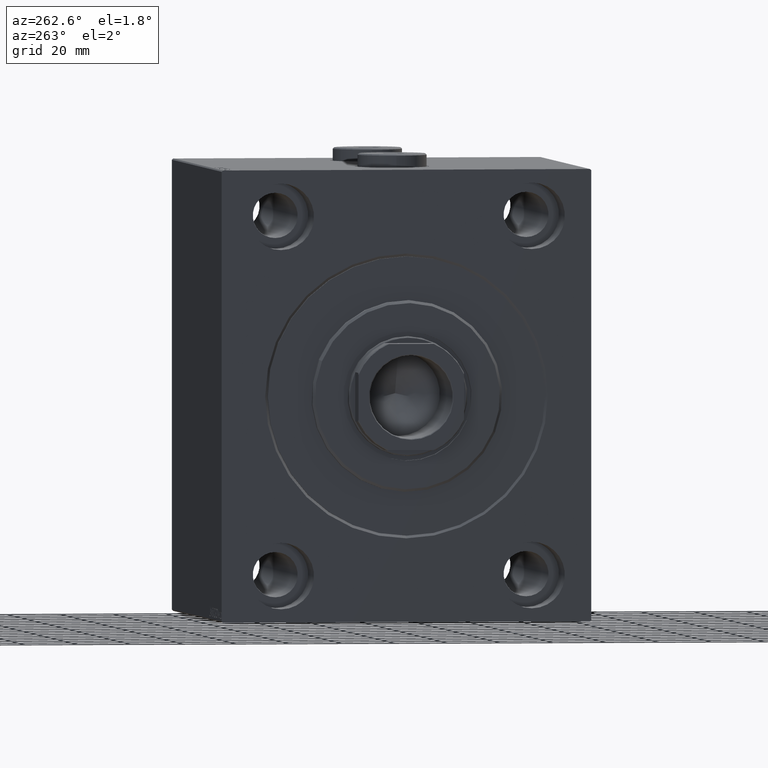
[diagram: clean part render]
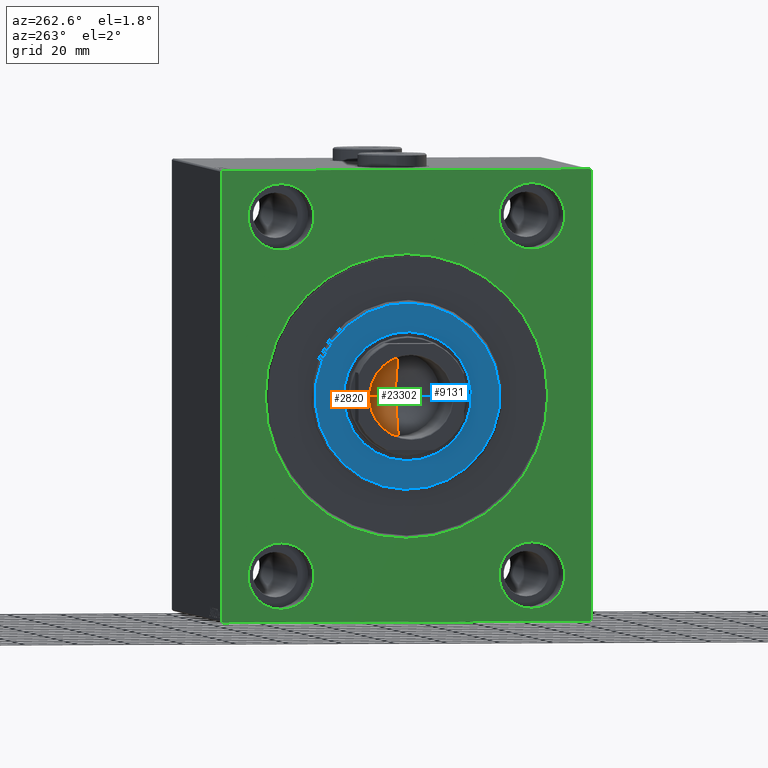
[diagram: same view with three faces highlighted in distinct colors, each labeled with its STEP entity id]
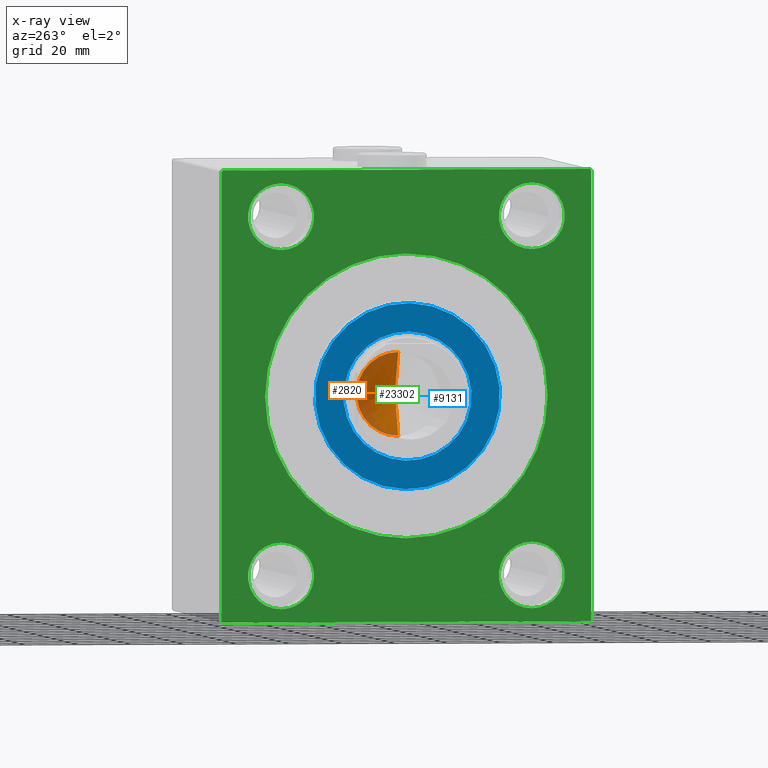
[diagram: x-ray of the same camera — body ghosted, the three highlighted faces saturated]
A machine part, auxiliary view with three faces highlighted in distinct colors.
The next image is the same camera in x-ray (body ghosted, the three faces saturated) — at least one of them is partly hidden behind the body in this view.
Their STEP definitions:

[orange] entity #2820 — the highlighted conical surface has half-angle 59 deg.
#2127 = DIRECTION ( 'NONE',  ( -0.000000000000000000, -0.000000000000000000, 1.000000000000000000 ) ) ;
#2820 = ADVANCED_FACE ( 'NONE', ( #21592 ), #24043, .F. ) ;
#4655 = VECTOR ( 'NONE', #29909, 1000.000000000000000 ) ;
#7033 = CARTESIAN_POINT ( 'NONE',  ( 15.74999999999999289, 0.000000000000000000, 26.99999999999998934 ) ) ;
#9933 = EDGE_CURVE ( 'NONE', #42795, #26758, #27782, .T. ) ;
#11295 = EDGE_LOOP ( 'NONE', ( #24054, #20606, #41231 ) ) ;
#15240 = CARTESIAN_POINT ( 'NONE',  ( -1.199718644317817648E-14, 0.000000000000000000, 17.53644525031590362 ) ) ;
#16497 = CARTESIAN_POINT ( 'NONE',  ( 0.000000000000000000, 0.000000000000000000, 26.99999999999998934 ) ) ;
#17476 = AXIS2_PLACEMENT_3D ( 'NONE', #32095, #39407, #39183 ) ;
#20606 = ORIENTED_EDGE ( 'NONE', *, *, #9933, .T. ) ;
#21121 = CARTESIAN_POINT ( 'NONE',  ( -15.74999999999999289, 1.928818708657080556E-15, 26.99999999999998934 ) ) ;
#21592 = FACE_OUTER_BOUND ( 'NONE', #11295, .T. ) ;
#22245 = VERTEX_POINT ( 'NONE', #21121 ) ;
#23254 = CIRCLE ( 'NONE', #29088, 15.74999999999999289 ) ;
#23331 = DIRECTION ( 'NONE',  ( 1.000000000000000000, 0.000000000000000000, 0.000000000000000000 ) ) ;
#24043 = CONICAL_SURFACE ( 'NONE', #17476, 15.74999999999999289, 1.029744258676653645 ) ;
#24054 = ORIENTED_EDGE ( 'NONE', *, *, #40823, .F. ) ;
#24223 = CARTESIAN_POINT ( 'NONE',  ( 15.74999999999999289, 0.000000000000000000, 26.99999999999998934 ) ) ;
#26481 = LINE ( 'NONE', #43406, #4655 ) ;
#26758 = VERTEX_POINT ( 'NONE', #24223 ) ;
#27782 = LINE ( 'NONE', #7033, #34568 ) ;
#27937 = EDGE_CURVE ( 'NONE', #26758, #22245, #23254, .T. ) ;
#29088 = AXIS2_PLACEMENT_3D ( 'NONE', #16497, #2127, #23331 ) ;
#29909 = DIRECTION ( 'NONE',  ( -0.8571673007021118895, 1.049727191138618079E-16, 0.5150380749100549327 ) ) ;
#31207 = DIRECTION ( 'NONE',  ( 0.8571673007021118895, 0.000000000000000000, 0.5150380749100549327 ) ) ;
#32095 = CARTESIAN_POINT ( 'NONE',  ( 0.000000000000000000, 0.000000000000000000, 26.99999999999998934 ) ) ;
#34568 = VECTOR ( 'NONE', #31207, 1000.000000000000000 ) ;
#39183 = DIRECTION ( 'NONE',  ( 1.000000000000000000, 0.000000000000000000, 0.000000000000000000 ) ) ;
#39407 = DIRECTION ( 'NONE',  ( -0.000000000000000000, -0.000000000000000000, 1.000000000000000000 ) ) ;
#40823 = EDGE_CURVE ( 'NONE', #42795, #22245, #26481, .T. ) ;
#41231 = ORIENTED_EDGE ( 'NONE', *, *, #27937, .T. ) ;
#42795 = VERTEX_POINT ( 'NONE', #15240 ) ;
#43406 = CARTESIAN_POINT ( 'NONE',  ( -15.74999999999999289, 1.928818708657080556E-15, 26.99999999999998934 ) ) ;

[blue] entity #9131 — the highlighted planar face has unit normal (-1, 0, 0).
#160 = EDGE_LOOP ( 'NONE', ( #8789, #40307 ) ) ;
#998 = CIRCLE ( 'NONE', #40344, 35.00000000000001421 ) ;
#2671 = EDGE_CURVE ( 'NONE', #43795, #31855, #4393, .T. ) ;
#4393 = CIRCLE ( 'NONE', #18948, 24.25000000000000000 ) ;
#4964 = CIRCLE ( 'NONE', #20257, 24.25000000000000000 ) ;
#6074 = CARTESIAN_POINT ( 'NONE',  ( 3.000000000000000000, 0.000000000000000000, 35.00000000000001421 ) ) ;
#6100 = DIRECTION ( 'NONE',  ( 0.000000000000000000, 0.000000000000000000, -1.000000000000000000 ) ) ;
#6467 = DIRECTION ( 'NONE',  ( -1.000000000000000000, 0.000000000000000000, -0.000000000000000000 ) ) ;
#7133 = CARTESIAN_POINT ( 'NONE',  ( 3.000000000000000000, 0.000000000000000000, 24.25000000000000000 ) ) ;
#8276 = CIRCLE ( 'NONE', #16310, 35.00000000000001421 ) ;
#8789 = ORIENTED_EDGE ( 'NONE', *, *, #40357, .T. ) ;
#9131 = ADVANCED_FACE ( 'NONE', ( #44924, #30773 ), #41285, .T. ) ;
#16302 = DIRECTION ( 'NONE',  ( 0.000000000000000000, 0.000000000000000000, -1.000000000000000000 ) ) ;
#16310 = AXIS2_PLACEMENT_3D ( 'NONE', #41213, #19984, #44400 ) ;
#17803 = AXIS2_PLACEMENT_3D ( 'NONE', #41512, #30099, #20281 ) ;
#18948 = AXIS2_PLACEMENT_3D ( 'NONE', #31184, #20915, #38502 ) ;
#19502 = CARTESIAN_POINT ( 'NONE',  ( 3.000000000000000000, 2.969768487932331287E-15, -24.25000000000000000 ) ) ;
#19791 = DIRECTION ( 'NONE',  ( 1.000000000000000000, -0.000000000000000000, 0.000000000000000000 ) ) ;
#19984 = DIRECTION ( 'NONE',  ( 1.000000000000000000, -0.000000000000000000, 0.000000000000000000 ) ) ;
#20257 = AXIS2_PLACEMENT_3D ( 'NONE', #27435, #6467, #16302 ) ;
#20281 = DIRECTION ( 'NONE',  ( 0.000000000000000000, 0.000000000000000000, -1.000000000000000000 ) ) ;
#20458 = CARTESIAN_POINT ( 'NONE',  ( 3.000000000000000000, 0.000000000000000000, 0.000000000000000000 ) ) ;
#20671 = ORIENTED_EDGE ( 'NONE', *, *, #23800, .T. ) ;
#20915 = DIRECTION ( 'NONE',  ( -1.000000000000000000, 0.000000000000000000, -0.000000000000000000 ) ) ;
#23800 = EDGE_CURVE ( 'NONE', #31855, #43795, #4964, .T. ) ;
#26542 = VERTEX_POINT ( 'NONE', #34111 ) ;
#27435 = CARTESIAN_POINT ( 'NONE',  ( 3.000000000000000000, 0.000000000000000000, 0.000000000000000000 ) ) ;
#29149 = ORIENTED_EDGE ( 'NONE', *, *, #2671, .T. ) ;
#30099 = DIRECTION ( 'NONE',  ( 1.000000000000000000, -0.000000000000000000, 0.000000000000000000 ) ) ;
#30773 = FACE_BOUND ( 'NONE', #32759, .T. ) ;
#31184 = CARTESIAN_POINT ( 'NONE',  ( 3.000000000000000000, 0.000000000000000000, 0.000000000000000000 ) ) ;
#31855 = VERTEX_POINT ( 'NONE', #19502 ) ;
#32759 = EDGE_LOOP ( 'NONE', ( #29149, #20671 ) ) ;
#34111 = CARTESIAN_POINT ( 'NONE',  ( 3.000000000000000000, 4.347496136973104859E-15, -35.00000000000001421 ) ) ;
#38502 = DIRECTION ( 'NONE',  ( 0.000000000000000000, 0.000000000000000000, -1.000000000000000000 ) ) ;
#40307 = ORIENTED_EDGE ( 'NONE', *, *, #41704, .T. ) ;
#40344 = AXIS2_PLACEMENT_3D ( 'NONE', #20458, #19791, #6100 ) ;
#40357 = EDGE_CURVE ( 'NONE', #41731, #26542, #998, .T. ) ;
#41213 = CARTESIAN_POINT ( 'NONE',  ( 3.000000000000000000, 0.000000000000000000, 0.000000000000000000 ) ) ;
#41285 = PLANE ( 'NONE',  #17803 ) ;
#41512 = CARTESIAN_POINT ( 'NONE',  ( 3.000000000000000000, 0.000000000000000000, 0.000000000000000000 ) ) ;
#41704 = EDGE_CURVE ( 'NONE', #26542, #41731, #8276, .T. ) ;
#41731 = VERTEX_POINT ( 'NONE', #6074 ) ;
#43795 = VERTEX_POINT ( 'NONE', #7133 ) ;
#44400 = DIRECTION ( 'NONE',  ( 0.000000000000000000, 0.000000000000000000, -1.000000000000000000 ) ) ;
#44924 = FACE_OUTER_BOUND ( 'NONE', #160, .T. ) ;

[green] entity #23302 — the highlighted planar face has unit normal (1, 0, 0).
#179 = EDGE_CURVE ( 'NONE', #15890, #20948, #5470, .T. ) ;
#390 = CARTESIAN_POINT ( 'NONE',  ( 0.000000000000000000, -69.49999999999998579, 84.99999999999998579 ) ) ;
#637 = CARTESIAN_POINT ( 'NONE',  ( 0.000000000000000000, 0.000000000000000000, 0.000000000000000000 ) ) ;
#710 = CIRCLE ( 'NONE', #33473, 53.50000000000000000 ) ;
#992 = EDGE_CURVE ( 'NONE', #16031, #43505, #710, .T. ) ;
#1078 = EDGE_CURVE ( 'NONE', #13106, #38395, #21833, .T. ) ;
#1153 = CARTESIAN_POINT ( 'NONE',  ( 0.000000000000000000, 6.551860375438339893E-15, -53.50000000000000000 ) ) ;
#1564 = DIRECTION ( 'NONE',  ( -1.000000000000000000, 0.000000000000000000, 0.000000000000000000 ) ) ;
#1672 = DIRECTION ( 'NONE',  ( -1.000000000000000000, 0.000000000000000000, 0.000000000000000000 ) ) ;
#2085 = FACE_BOUND ( 'NONE', #39377, .T. ) ;
#2131 = AXIS2_PLACEMENT_3D ( 'NONE', #26473, #16237, #19415 ) ;
#2341 = ORIENTED_EDGE ( 'NONE', *, *, #19919, .T. ) ;
#2453 = DIRECTION ( 'NONE',  ( 0.000000000000000000, 0.000000000000000000, 1.000000000000000000 ) ) ;
#2538 = LINE ( 'NONE', #16688, #6619 ) ;
#2745 = CIRCLE ( 'NONE', #31785, 12.50000000000001066 ) ;
#3670 = VERTEX_POINT ( 'NONE', #390 ) ;
#4202 = CARTESIAN_POINT ( 'NONE',  ( 0.000000000000000000, 0.000000000000000000, 0.000000000000000000 ) ) ;
#4733 = CARTESIAN_POINT ( 'NONE',  ( 0.000000000000000000, -47.49999999999999289, -67.50000000000000000 ) ) ;
#4911 = DIRECTION ( 'NONE',  ( 0.000000000000000000, 0.000000000000000000, 1.000000000000000000 ) ) ;
#5092 = CARTESIAN_POINT ( 'NONE',  ( 0.000000000000000000, 70.00000000000002842, -85.00000000000001421 ) ) ;
#5150 = CIRCLE ( 'NONE', #23350, 12.50000000000001066 ) ;
#5312 = LINE ( 'NONE', #12181, #5956 ) ;
#5438 = VERTEX_POINT ( 'NONE', #7665 ) ;
#5470 = LINE ( 'NONE', #26664, #22527 ) ;
#5632 = CARTESIAN_POINT ( 'NONE',  ( 0.000000000000000000, 70.00000000000002842, -84.50000000000004263 ) ) ;
#5869 = EDGE_LOOP ( 'NONE', ( #43247, #30899 ) ) ;
#5956 = VECTOR ( 'NONE', #36588, 1000.000000000000000 ) ;
#5960 = FACE_BOUND ( 'NONE', #5869, .T. ) ;
#6352 = EDGE_CURVE ( 'NONE', #43505, #16031, #39483, .T. ) ;
#6405 = FACE_BOUND ( 'NONE', #34715, .T. ) ;
#6619 = VECTOR ( 'NONE', #12834, 999.9999999999998863 ) ;
#6736 = EDGE_CURVE ( 'NONE', #7214, #3670, #5312, .T. ) ;
#6818 = ORIENTED_EDGE ( 'NONE', *, *, #15102, .F. ) ;
#7017 = LINE ( 'NONE', #30515, #12405 ) ;
#7214 = VERTEX_POINT ( 'NONE', #12048 ) ;
#7451 = EDGE_CURVE ( 'NONE', #8290, #5438, #21352, .T. ) ;
#7665 = CARTESIAN_POINT ( 'NONE',  ( 0.000000000000000000, 47.50000000000000711, 55.00000000000000000 ) ) ;
#8290 = VERTEX_POINT ( 'NONE', #23024 ) ;
#8532 = LINE ( 'NONE', #5092, #38741 ) ;
#8740 = AXIS2_PLACEMENT_3D ( 'NONE', #18570, #1672, #14936 ) ;
#9023 = CIRCLE ( 'NONE', #28662, 12.49999999999999645 ) ;
#9553 = DIRECTION ( 'NONE',  ( -0.000000000000000000, 0.7071067811865671127, 0.7071067811865279218 ) ) ;
#10317 = ORIENTED_EDGE ( 'NONE', *, *, #33894, .F. ) ;
#10330 = DIRECTION ( 'NONE',  ( 0.000000000000000000, 1.000000000000000000, 9.912705577010325549E-17 ) ) ;
#10339 = CARTESIAN_POINT ( 'NONE',  ( 0.000000000000000000, 69.50000000000001421, -85.00000000000001421 ) ) ;
#10880 = ORIENTED_EDGE ( 'NONE', *, *, #41613, .F. ) ;
#10913 = CARTESIAN_POINT ( 'NONE',  ( 0.000000000000000000, 47.50000000000000711, -80.00000000000000000 ) ) ;
#12048 = CARTESIAN_POINT ( 'NONE',  ( 0.000000000000000000, 69.50000000000007105, 85.00000000000000000 ) ) ;
#12181 = CARTESIAN_POINT ( 'NONE',  ( 0.000000000000000000, 70.00000000000001421, 85.00000000000000000 ) ) ;
#12225 = CARTESIAN_POINT ( 'NONE',  ( 0.000000000000000000, 47.50000000000000711, 67.50000000000000000 ) ) ;
#12405 = VECTOR ( 'NONE', #9553, 1000.000000000000000 ) ;
#12821 = DIRECTION ( 'NONE',  ( 1.000000000000000000, 0.000000000000000000, 0.000000000000000000 ) ) ;
#12834 = DIRECTION ( 'NONE',  ( -0.000000000000000000, 0.7071067811865574537, -0.7071067811865376918 ) ) ;
#12866 = AXIS2_PLACEMENT_3D ( 'NONE', #17609, #14425, #41576 ) ;
#13106 = VERTEX_POINT ( 'NONE', #32105 ) ;
#13231 = AXIS2_PLACEMENT_3D ( 'NONE', #637, #35332, #35098 ) ;
#13798 = DIRECTION ( 'NONE',  ( 0.000000000000000000, 0.000000000000000000, -1.000000000000000000 ) ) ;
#14172 = VERTEX_POINT ( 'NONE', #10913 ) ;
#14425 = DIRECTION ( 'NONE',  ( -1.000000000000000000, 0.000000000000000000, 0.000000000000000000 ) ) ;
#14450 = VECTOR ( 'NONE', #44622, 1000.000000000000114 ) ;
#14859 = VERTEX_POINT ( 'NONE', #18340 ) ;
#14936 = DIRECTION ( 'NONE',  ( 0.000000000000000000, 0.000000000000000000, 1.000000000000000000 ) ) ;
#15102 = EDGE_CURVE ( 'NONE', #15409, #42204, #42730, .T. ) ;
#15409 = VERTEX_POINT ( 'NONE', #35350 ) ;
#15890 = VERTEX_POINT ( 'NONE', #42026 ) ;
#16031 = VERTEX_POINT ( 'NONE', #23727 ) ;
#16237 = DIRECTION ( 'NONE',  ( -1.000000000000000000, 0.000000000000000000, 0.000000000000000000 ) ) ;
#16243 = FACE_BOUND ( 'NONE', #32385, .T. ) ;
#16678 = FACE_BOUND ( 'NONE', #24513, .T. ) ;
#16688 = CARTESIAN_POINT ( 'NONE',  ( 0.000000000000000000, 69.50000000000007105, 85.00000000000000000 ) ) ;
#17609 = CARTESIAN_POINT ( 'NONE',  ( 0.000000000000000000, -47.49999999999997868, 67.50000000000000000 ) ) ;
#17897 = ORIENTED_EDGE ( 'NONE', *, *, #31385, .T. ) ;
#17950 = CARTESIAN_POINT ( 'NONE',  ( 0.000000000000000000, 47.50000000000000711, -67.50000000000000000 ) ) ;
#18340 = CARTESIAN_POINT ( 'NONE',  ( 0.000000000000000000, 70.00000000000001421, 84.50000000000007105 ) ) ;
#18570 = CARTESIAN_POINT ( 'NONE',  ( 0.000000000000000000, -47.49999999999999289, -67.50000000000000000 ) ) ;
#18741 = EDGE_CURVE ( 'NONE', #42204, #15409, #2745, .T. ) ;
#19382 = CARTESIAN_POINT ( 'NONE',  ( 0.000000000000000000, -69.99999999999998579, -84.50000000000004263 ) ) ;
#19415 = DIRECTION ( 'NONE',  ( 0.000000000000000000, 0.000000000000000000, 1.000000000000000000 ) ) ;
#19737 = CARTESIAN_POINT ( 'NONE',  ( 0.000000000000000000, -47.49999999999997868, 67.50000000000000000 ) ) ;
#19867 = CARTESIAN_POINT ( 'NONE',  ( 0.000000000000000000, 0.000000000000000000, 0.000000000000000000 ) ) ;
#19919 = EDGE_CURVE ( 'NONE', #21895, #43942, #31943, .T. ) ;
#20319 = CIRCLE ( 'NONE', #2131, 12.49999999999999645 ) ;
#20357 = CARTESIAN_POINT ( 'NONE',  ( 0.000000000000000000, -69.99999999999998579, -85.00000000000002842 ) ) ;
#20948 = VERTEX_POINT ( 'NONE', #19382 ) ;
#21352 = CIRCLE ( 'NONE', #27898, 12.50000000000001066 ) ;
#21833 = CIRCLE ( 'NONE', #8740, 12.49999999999999645 ) ;
#21895 = VERTEX_POINT ( 'NONE', #36078 ) ;
#22448 = AXIS2_PLACEMENT_3D ( 'NONE', #19867, #12821, #41321 ) ;
#22514 = DIRECTION ( 'NONE',  ( 0.000000000000000000, 0.000000000000000000, 1.000000000000000000 ) ) ;
#22527 = VECTOR ( 'NONE', #23249, 1000.000000000000000 ) ;
#22574 = CIRCLE ( 'NONE', #24743, 12.49999999999999645 ) ;
#23024 = CARTESIAN_POINT ( 'NONE',  ( 0.000000000000000000, 47.50000000000000711, 80.00000000000001421 ) ) ;
#23140 = DIRECTION ( 'NONE',  ( -1.000000000000000000, 0.000000000000000000, 0.000000000000000000 ) ) ;
#23199 = ORIENTED_EDGE ( 'NONE', *, *, #7451, .F. ) ;
#23249 = DIRECTION ( 'NONE',  ( 0.000000000000000000, 0.000000000000000000, -1.000000000000000000 ) ) ;
#23302 = ADVANCED_FACE ( 'NONE', ( #5960, #2085, #16243, #6405, #16678, #40865 ), #36784, .F. ) ;
#23350 = AXIS2_PLACEMENT_3D ( 'NONE', #33273, #1564, #2453 ) ;
#23509 = EDGE_CURVE ( 'NONE', #44348, #20948, #37566, .T. ) ;
#23727 = CARTESIAN_POINT ( 'NONE',  ( 0.000000000000000000, 0.000000000000000000, 53.50000000000000000 ) ) ;
#24513 = EDGE_LOOP ( 'NONE', ( #10880, #40041 ) ) ;
#24658 = ORIENTED_EDGE ( 'NONE', *, *, #28572, .F. ) ;
#24743 = AXIS2_PLACEMENT_3D ( 'NONE', #17950, #41915, #31632 ) ;
#25096 = CARTESIAN_POINT ( 'NONE',  ( 0.000000000000000000, 47.50000000000000711, -55.00000000000000711 ) ) ;
#25705 = DIRECTION ( 'NONE',  ( -1.000000000000000000, 0.000000000000000000, 0.000000000000000000 ) ) ;
#26255 = ORIENTED_EDGE ( 'NONE', *, *, #35627, .F. ) ;
#26473 = CARTESIAN_POINT ( 'NONE',  ( 0.000000000000000000, 47.50000000000000711, -67.50000000000000000 ) ) ;
#26664 = CARTESIAN_POINT ( 'NONE',  ( 0.000000000000000000, -69.99999999999998579, 84.99999999999998579 ) ) ;
#26718 = EDGE_CURVE ( 'NONE', #44348, #43942, #34061, .T. ) ;
#26980 = EDGE_CURVE ( 'NONE', #14172, #31627, #20319, .T. ) ;
#27898 = AXIS2_PLACEMENT_3D ( 'NONE', #12225, #23140, #4911 ) ;
#28294 = CARTESIAN_POINT ( 'NONE',  ( 0.000000000000000000, -47.49999999999999289, -55.00000000000000711 ) ) ;
#28517 = DIRECTION ( 'NONE',  ( 0.000000000000000000, -0.7071067811865769936, -0.7071067811865181518 ) ) ;
#28572 = EDGE_CURVE ( 'NONE', #31627, #14172, #22574, .T. ) ;
#28662 = AXIS2_PLACEMENT_3D ( 'NONE', #4733, #25705, #22514 ) ;
#28932 = DIRECTION ( 'NONE',  ( -1.000000000000000000, 0.000000000000000000, 0.000000000000000000 ) ) ;
#29290 = EDGE_CURVE ( 'NONE', #15890, #3670, #7017, .T. ) ;
#30414 = ORIENTED_EDGE ( 'NONE', *, *, #26718, .F. ) ;
#30510 = VECTOR ( 'NONE', #10330, 1000.000000000000000 ) ;
#30515 = CARTESIAN_POINT ( 'NONE',  ( 0.000000000000000000, -69.99999999999998579, 84.50000000000001421 ) ) ;
#30649 = CARTESIAN_POINT ( 'NONE',  ( 0.000000000000000000, -47.49999999999997868, 55.00000000000000000 ) ) ;
#30899 = ORIENTED_EDGE ( 'NONE', *, *, #6352, .T. ) ;
#31342 = ORIENTED_EDGE ( 'NONE', *, *, #18741, .F. ) ;
#31385 = EDGE_CURVE ( 'NONE', #7214, #14859, #2538, .T. ) ;
#31627 = VERTEX_POINT ( 'NONE', #25096 ) ;
#31632 = DIRECTION ( 'NONE',  ( 0.000000000000000000, 0.000000000000000000, 1.000000000000000000 ) ) ;
#31785 = AXIS2_PLACEMENT_3D ( 'NONE', #19737, #28932, #33883 ) ;
#31943 = LINE ( 'NONE', #5632, #34011 ) ;
#32105 = CARTESIAN_POINT ( 'NONE',  ( 0.000000000000000000, -47.49999999999999289, -80.00000000000000000 ) ) ;
#32385 = EDGE_LOOP ( 'NONE', ( #6818, #31342 ) ) ;
#33193 = EDGE_LOOP ( 'NONE', ( #34351, #42862, #36998, #17897, #10317, #2341, #30414, #44808 ) ) ;
#33273 = CARTESIAN_POINT ( 'NONE',  ( 0.000000000000000000, 47.50000000000000711, 67.50000000000000000 ) ) ;
#33334 = CARTESIAN_POINT ( 'NONE',  ( 0.000000000000000000, -69.50000000000001421, -85.00000000000002842 ) ) ;
#33473 = AXIS2_PLACEMENT_3D ( 'NONE', #4202, #34996, #13798 ) ;
#33883 = DIRECTION ( 'NONE',  ( 0.000000000000000000, 0.000000000000000000, 1.000000000000000000 ) ) ;
#33894 = EDGE_CURVE ( 'NONE', #21895, #14859, #8532, .T. ) ;
#34011 = VECTOR ( 'NONE', #28517, 1000.000000000000000 ) ;
#34061 = LINE ( 'NONE', #20357, #30510 ) ;
#34351 = ORIENTED_EDGE ( 'NONE', *, *, #179, .F. ) ;
#34715 = EDGE_LOOP ( 'NONE', ( #23199, #26255 ) ) ;
#34996 = DIRECTION ( 'NONE',  ( 1.000000000000000000, 0.000000000000000000, 0.000000000000000000 ) ) ;
#35098 = DIRECTION ( 'NONE',  ( 0.000000000000000000, 0.000000000000000000, -1.000000000000000000 ) ) ;
#35332 = DIRECTION ( 'NONE',  ( 1.000000000000000000, 0.000000000000000000, 0.000000000000000000 ) ) ;
#35350 = CARTESIAN_POINT ( 'NONE',  ( 0.000000000000000000, -47.49999999999997868, 80.00000000000001421 ) ) ;
#35627 = EDGE_CURVE ( 'NONE', #5438, #8290, #5150, .T. ) ;
#36078 = CARTESIAN_POINT ( 'NONE',  ( 0.000000000000000000, 70.00000000000002842, -84.50000000000004263 ) ) ;
#36588 = DIRECTION ( 'NONE',  ( 0.000000000000000000, -1.000000000000000000, -9.912705577010325549E-17 ) ) ;
#36784 = PLANE ( 'NONE',  #22448 ) ;
#36857 = ORIENTED_EDGE ( 'NONE', *, *, #26980, .F. ) ;
#36998 = ORIENTED_EDGE ( 'NONE', *, *, #6736, .F. ) ;
#37566 = LINE ( 'NONE', #37786, #14450 ) ;
#37786 = CARTESIAN_POINT ( 'NONE',  ( 0.000000000000000000, -69.50000000000001421, -85.00000000000002842 ) ) ;
#38395 = VERTEX_POINT ( 'NONE', #28294 ) ;
#38741 = VECTOR ( 'NONE', #43438, 1000.000000000000000 ) ;
#39377 = EDGE_LOOP ( 'NONE', ( #24658, #36857 ) ) ;
#39483 = CIRCLE ( 'NONE', #13231, 53.50000000000000000 ) ;
#40041 = ORIENTED_EDGE ( 'NONE', *, *, #1078, .F. ) ;
#40865 = FACE_OUTER_BOUND ( 'NONE', #33193, .T. ) ;
#41321 = DIRECTION ( 'NONE',  ( 0.000000000000000000, 0.000000000000000000, -1.000000000000000000 ) ) ;
#41576 = DIRECTION ( 'NONE',  ( 0.000000000000000000, 0.000000000000000000, 1.000000000000000000 ) ) ;
#41613 = EDGE_CURVE ( 'NONE', #38395, #13106, #9023, .T. ) ;
#41915 = DIRECTION ( 'NONE',  ( -1.000000000000000000, 0.000000000000000000, 0.000000000000000000 ) ) ;
#42026 = CARTESIAN_POINT ( 'NONE',  ( 0.000000000000000000, -69.99999999999998579, 84.50000000000001421 ) ) ;
#42204 = VERTEX_POINT ( 'NONE', #30649 ) ;
#42730 = CIRCLE ( 'NONE', #12866, 12.50000000000001066 ) ;
#42862 = ORIENTED_EDGE ( 'NONE', *, *, #29290, .T. ) ;
#43247 = ORIENTED_EDGE ( 'NONE', *, *, #992, .T. ) ;
#43438 = DIRECTION ( 'NONE',  ( 0.000000000000000000, -8.163404592832031500E-17, 1.000000000000000000 ) ) ;
#43505 = VERTEX_POINT ( 'NONE', #1153 ) ;
#43942 = VERTEX_POINT ( 'NONE', #10339 ) ;
#44348 = VERTEX_POINT ( 'NONE', #33334 ) ;
#44622 = DIRECTION ( 'NONE',  ( -0.000000000000000000, -0.7071067811865376918, 0.7071067811865573427 ) ) ;
#44808 = ORIENTED_EDGE ( 'NONE', *, *, #23509, .T. ) ;